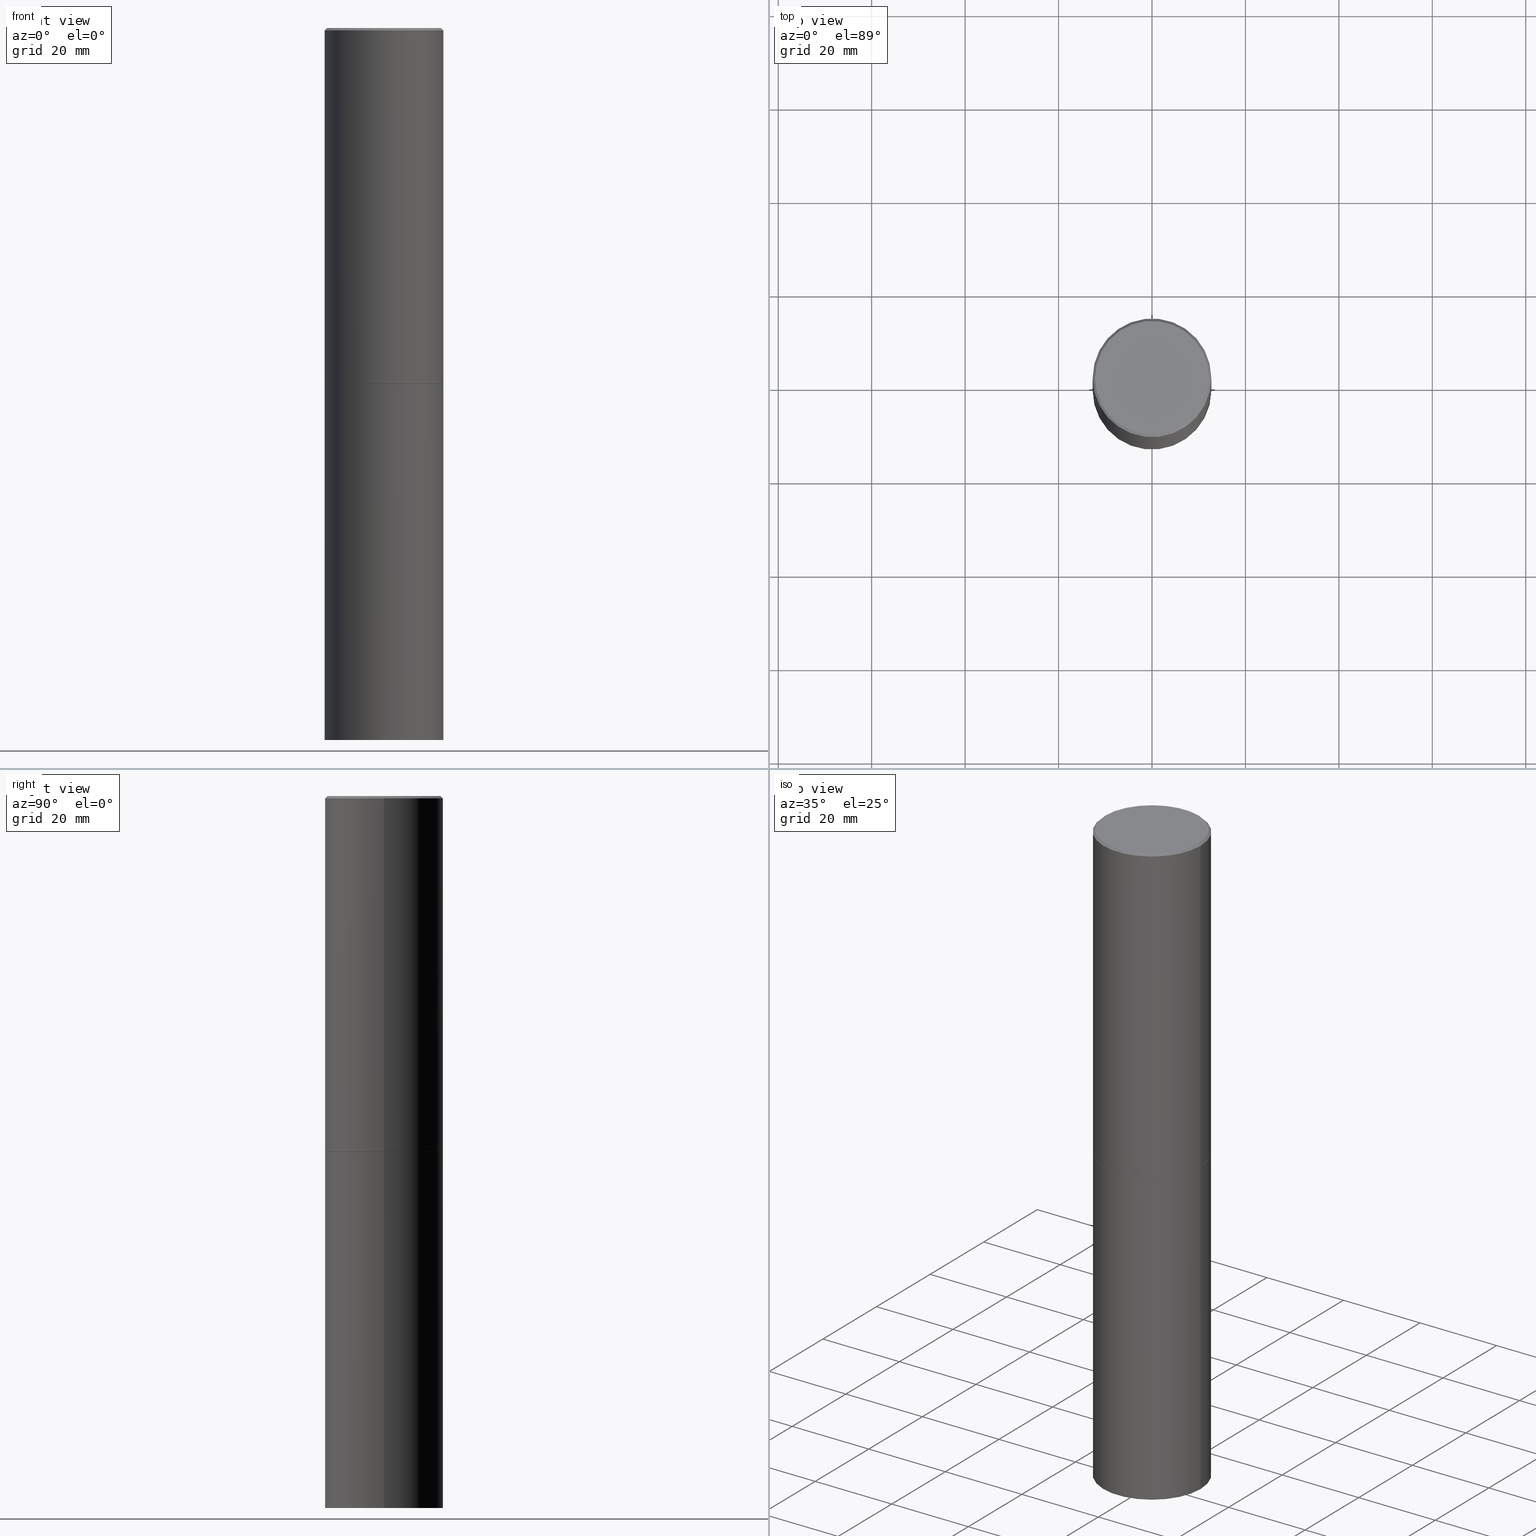
[diagram: canonical four-view strip — front | top / right | iso, engineering-drawing reading convention]
A machine part, canonical four-view strip (front | top / right | iso — engineering-drawing reading convention). The complete STEP part file that produces these views, byte-faithful:
ISO-10303-21;
HEADER;
FILE_DESCRIPTION (( 'STEP AP203' ),
    '1' );
FILE_NAME ('70489.STEP',
    '2024-02-29T03:27:12',
    ( '' ),
    ( '' ),
    'SwSTEP 2.0',
    'SolidWorks 2023',
    '' );
FILE_SCHEMA (( 'CONFIG_CONTROL_DESIGN' ));
ENDSEC;

DATA;
#1 = PERSON_AND_ORGANIZATION_ROLE ( 'creator' ) ;
#2 = ORIENTED_EDGE ( 'NONE', *, *, #215, .T. ) ;
#3 = ADVANCED_FACE ( 'NONE', ( #102 ), #162, .T. ) ;
#4 = AXIS2_PLACEMENT_3D ( 'NONE', #154, #122, #270 ) ;
#5 = ORIENTED_EDGE ( 'NONE', *, *, #264, .T. ) ;
#6 = FACE_OUTER_BOUND ( 'NONE', #254, .T. ) ;
#7 = CALENDAR_DATE ( 2024, 28, 2 ) ;
#8 = ADVANCED_FACE ( 'NONE', ( #196 ), #210, .T. ) ;
#9 = EDGE_LOOP ( 'NONE', ( #135, #41, #364, #194 ) ) ;
#10 = DATE_TIME_ROLE ( 'creation_date' ) ;
#11 = LOCAL_TIME ( 22, 27, 12.00000000000000000, #70 ) ;
#12 = EDGE_LOOP ( 'NONE', ( #243, #336, #288, #257 ) ) ;
#13 = DIRECTION ( 'NONE',  ( -0.7071067811868130271, 7.493145998871311837E-15, 0.7071067811862817853 ) ) ;
#14 = PRODUCT_RELATED_PRODUCT_CATEGORY ( 'detail', '', ( #350 ) ) ;
#15 = DIRECTION ( 'NONE',  ( -2.445468806185136877E-29, 3.491481338843145188E-15, 1.000000000000000000 ) ) ;
#16 = DIRECTION ( 'NONE',  ( 2.445468806185136597E-29, -3.491481338843145583E-15, -1.000000000000000000 ) ) ;
#17 = LOCAL_TIME ( 22, 27, 12.00000000000000000, #167 ) ;
#18 = DIRECTION ( 'NONE',  ( -2.445468806185136597E-29, 3.491481338843145583E-15, 1.000000000000000000 ) ) ;
#19 = ADVANCED_FACE ( 'NONE', ( #172 ), #286, .F. ) ;
#20 = CARTESIAN_POINT ( 'NONE',  ( 7.336406418555409790E-29, -1.047444401652943635E-14, -3.000000000000000444 ) ) ;
#21 = PERSON_AND_ORGANIZATION_ROLE ( 'design_owner' ) ;
#22 = PRODUCT_DEFINITION_FORMATION_WITH_SPECIFIED_SOURCE ( 'ANY', '', #350, .NOT_KNOWN. ) ;
#23 = EDGE_CURVE ( 'NONE', #330, #86, #279, .T. ) ;
#24 = DIRECTION ( 'NONE',  ( 1.000000000000000000, -6.982962677686269077E-15, 0.000000000000000000 ) ) ;
#25 = DIRECTION ( 'NONE',  ( -2.445468806185136597E-29, 3.491481338843145583E-15, 1.000000000000000000 ) ) ;
#26 = AXIS2_PLACEMENT_3D ( 'NONE', #164, #282, #35 ) ;
#27 = VECTOR ( 'NONE', #202, 39.37007874015748854 ) ;
#28 =( NAMED_UNIT ( * ) PLANE_ANGLE_UNIT ( ) SI_UNIT ( $, .RADIAN. ) );
#29 = PERSON_AND_ORGANIZATION_ROLE ( 'creator' ) ;
#30 = EDGE_CURVE ( 'NONE', #283, #330, #40, .T. ) ;
#31 = VERTEX_POINT ( 'NONE', #259 ) ;
#32 = DIRECTION ( 'NONE',  ( 1.000000000000000000, -6.982962677686266711E-15, 0.000000000000000000 ) ) ;
#33 = CIRCLE ( 'NONE', #120, 0.5000000000000000000 ) ;
#34 = COORDINATED_UNIVERSAL_TIME_OFFSET ( 5, 0, .BEHIND. ) ;
#35 = DIRECTION ( 'NONE',  ( 1.000000000000000000, -6.982962677686266711E-15, 4.876176775795935793E-29 ) ) ;
#36 = ADVANCED_FACE ( 'NONE', ( #118 ), #54, .T. ) ;
#37 = EDGE_LOOP ( 'NONE', ( #285, #308, #107, #143 ) ) ;
#38 = DIRECTION ( 'NONE',  ( -1.000000000000000000, 6.982962677686265922E-15, -4.876176775795935793E-29 ) ) ;
#39 = ORIENTED_EDGE ( 'NONE', *, *, #215, .F. ) ;
#40 = LINE ( 'NONE', #252, #43 ) ;
#41 = ORIENTED_EDGE ( 'NONE', *, *, #42, .T. ) ;
#42 = EDGE_CURVE ( 'NONE', #330, #344, #132, .T. ) ;
#43 = VECTOR ( 'NONE', #13, 39.37007874015748854 ) ;
#44 = DIRECTION ( 'NONE',  ( 1.000000000000000000, -6.982962677686269077E-15, 0.000000000000000000 ) ) ;
#45 = DIRECTION ( 'NONE',  ( -2.445468806185136597E-29, 3.491481338843145583E-15, 1.000000000000000000 ) ) ;
#46 = CALENDAR_DATE ( 2024, 28, 2 ) ;
#47 = CARTESIAN_POINT ( 'NONE',  ( 0.4989999999999999991, -1.395894239269488369E-14, -2.999999999999999556 ) ) ;
#48 = CARTESIAN_POINT ( 'NONE',  ( 0.4999999999999998335, -3.491481338843132566E-15, 2.438088387897967336E-29 ) ) ;
#49 = CIRCLE ( 'NONE', #211, 0.4999999999999997224 ) ;
#50 = CARTESIAN_POINT ( 'NONE',  ( -0.5000000000000000000, -1.215895234599365439E-14, -3.000000000000000444 ) ) ;
#51 = LINE ( 'NONE', #48, #65 ) ;
#52 = ADVANCED_FACE ( 'NONE', ( #71 ), #87, .T. ) ;
#53 = APPROVAL_ROLE ( '' ) ;
#54 = CONICAL_SURFACE ( 'NONE', #203, 0.4989999999999999991, 0.7853981633978239785 ) ;
#55 = AXIS2_PLACEMENT_3D ( 'NONE', #335, #130, #58 ) ;
#56 = DIRECTION ( 'NONE',  ( 2.438088387897960049E-29, -3.491481338843145188E-15, -1.000000000000000000 ) ) ;
#57 = PERSON_AND_ORGANIZATION ( #302, #268 ) ;
#58 = DIRECTION ( 'NONE',  ( 1.000000000000000000, -6.982962677686262766E-15, 0.000000000000000000 ) ) ;
#59 = ADVANCED_FACE ( 'NONE', ( #284 ), #310, .T. ) ;
#60 = DIRECTION ( 'NONE',  ( 0.000000000000000000, 0.000000000000000000, 1.000000000000000000 ) ) ;
#61 = ORIENTED_EDGE ( 'NONE', *, *, #337, .F. ) ;
#62 = APPROVAL_DATE_TIME ( #136, #206 ) ;
#63 = ADVANCED_FACE ( 'NONE', ( #6 ), #114, .T. ) ;
#64 = COORDINATED_UNIVERSAL_TIME_OFFSET ( 5, 0, .BEHIND. ) ;
#65 = VECTOR ( 'NONE', #209, 39.37007874015748143 ) ;
#66 = CARTESIAN_POINT ( 'NONE',  ( 3.491481338843206325E-15, 0.4999999999999895639, -3.000000000000001776 ) ) ;
#67 = VERTEX_POINT ( 'NONE', #96 ) ;
#68 = EDGE_LOOP ( 'NONE', ( #366, #173 ) ) ;
#69 = PRODUCT_DEFINITION ( 'UNKNOWN', '', #22, #311 ) ;
#70 = COORDINATED_UNIVERSAL_TIME_OFFSET ( 5, 0, .BEHIND. ) ;
#71 = FACE_OUTER_BOUND ( 'NONE', #117, .T. ) ;
#72 = VERTEX_POINT ( 'NONE', #77 ) ;
#73 = AXIS2_PLACEMENT_3D ( 'NONE', #359, #25, #101 ) ;
#74 = CARTESIAN_POINT ( 'NONE',  ( -0.4989999999999999991, -6.923537310738314819E-15, -2.999999999999999556 ) ) ;
#75 = CARTESIAN_POINT ( 'NONE',  ( 7.336406418555409790E-29, -1.047444401652943635E-14, -3.000000000000000444 ) ) ;
#76 = AXIS2_PLACEMENT_3D ( 'NONE', #217, #60, #296 ) ;
#77 = CARTESIAN_POINT ( 'NONE',  ( 0.4999999999999997224, -3.500078625662627502E-15, -0.02000000000000011491 ) ) ;
#78 = CARTESIAN_POINT ( 'NONE',  ( 3.351822085289405970E-15, 0.4799999999999997047, -1.669508273909558261E-15 ) ) ;
#79 = ORIENTED_EDGE ( 'NONE', *, *, #236, .T. ) ;
#80 = DATE_AND_TIME ( #116, #332 ) ;
#81 = CIRCLE ( 'NONE', #240, 0.5000000000000000000 ) ;
#82 = MECHANICAL_CONTEXT ( 'NONE', #241, 'mechanical' ) ;
#83 = PERSON_AND_ORGANIZATION_ROLE ( 'classification_officer' ) ;
#84 = FACE_OUTER_BOUND ( 'NONE', #68, .T. ) ;
#85 = PLANE ( 'NONE',  #126 ) ;
#86 = VERTEX_POINT ( 'NONE', #272 ) ;
#87 = CONICAL_SURFACE ( 'NONE', #182, 0.4999999999999997224, 0.7853981633974449483 ) ;
#88 = DIRECTION ( 'NONE',  ( 2.445468806185136597E-29, -3.491481338843145583E-15, -1.000000000000000000 ) ) ;
#89 = ORIENTED_EDGE ( 'NONE', *, *, #23, .T. ) ;
#90 = APPROVAL_STATUS ( 'not_yet_approved' ) ;
#91 = FACE_OUTER_BOUND ( 'NONE', #227, .T. ) ;
#92 = LOCAL_TIME ( 22, 27, 12.00000000000000000, #34 ) ;
#93 = VECTOR ( 'NONE', #106, 39.37007874015748143 ) ;
#94 = LINE ( 'NONE', #265, #146 ) ;
#95 = DIRECTION ( 'NONE',  ( -1.000000000000000000, 6.982962677686266711E-15, 0.000000000000000000 ) ) ;
#96 = CARTESIAN_POINT ( 'NONE',  ( -0.5000000000000000000, -1.215895234599365439E-14, -6.000000000000000888 ) ) ;
#97 = CARTESIAN_POINT ( 'NONE',  ( -3.131554243005659264E-46, 4.471029511141341874E-32, 1.280553747030123384E-17 ) ) ;
#98 = AXIS2_PLACEMENT_3D ( 'NONE', #275, #357, #24 ) ;
#99 = EDGE_CURVE ( 'NONE', #318, #283, #348, .T. ) ;
#100 = FACE_OUTER_BOUND ( 'NONE', #224, .T. ) ;
#101 = DIRECTION ( 'NONE',  ( 1.000000000000000000, -6.982962677686266711E-15, 0.000000000000000000 ) ) ;
#102 = FACE_OUTER_BOUND ( 'NONE', #9, .T. ) ;
#103 = CARTESIAN_POINT ( 'NONE',  ( 3.491481338843279295E-15, 0.4999999999999790168, -6.000000000000002665 ) ) ;
#104 = CIRCLE ( 'NONE', #112, 0.5000000000000000000 ) ;
#105 = ORIENTED_EDGE ( 'NONE', *, *, #304, .F. ) ;
#106 = DIRECTION ( 'NONE',  ( -0.7071067811865451302, 2.468850131082231817E-15, -0.7071067811865499042 ) ) ;
#107 = ORIENTED_EDGE ( 'NONE', *, *, #161, .F. ) ;
#108 = APPROVAL_ROLE ( '' ) ;
#109 = PERSON_AND_ORGANIZATION ( #302, #268 ) ;
#110 = ORIENTED_EDGE ( 'NONE', *, *, #358, .F. ) ;
#111 = APPROVAL ( #125, 'UNSPECIFIED' ) ;
#112 = AXIS2_PLACEMENT_3D ( 'NONE', #123, #323, #184 ) ;
#113 = ORIENTED_EDGE ( 'NONE', *, *, #170, .T. ) ;
#114 = CYLINDRICAL_SURFACE ( 'NONE', #175, 0.5000000000000000000 ) ;
#115 = APPROVAL ( #155, 'UNSPECIFIED' ) ;
#116 = CALENDAR_DATE ( 2024, 28, 2 ) ;
#117 = EDGE_LOOP ( 'NONE', ( #160, #201, #262, #79 ) ) ;
#118 = FACE_OUTER_BOUND ( 'NONE', #37, .T. ) ;
#119 = LINE ( 'NONE', #47, #27 ) ;
#120 = AXIS2_PLACEMENT_3D ( 'NONE', #238, #185, #294 ) ;
#121 =( GEOMETRIC_REPRESENTATION_CONTEXT ( 3 ) GLOBAL_UNCERTAINTY_ASSIGNED_CONTEXT ( ( #186 ) ) GLOBAL_UNIT_ASSIGNED_CONTEXT ( ( #189, #28, #191 ) ) REPRESENTATION_CONTEXT ( 'NONE', 'WORKASPACE' ) );
#122 = DIRECTION ( 'NONE',  ( -2.438088387897960049E-29, 3.491481338843145188E-15, 1.000000000000000000 ) ) ;
#123 = CARTESIAN_POINT ( 'NONE',  ( 7.333960949749226429E-29, -1.047095253519059492E-14, -2.999000000000000554 ) ) ;
#124 = CC_DESIGN_PERSON_AND_ORGANIZATION_ASSIGNMENT ( #187, #21, ( #350 ) ) ;
#125 = APPROVAL_STATUS ( 'not_yet_approved' ) ;
#126 = AXIS2_PLACEMENT_3D ( 'NONE', #103, #362, #329 ) ;
#127 = SECURITY_CLASSIFICATION_LEVEL ( 'unclassified' ) ;
#128 = CARTESIAN_POINT ( 'NONE',  ( 0.5000000000000000000, -1.396243387403372828E-14, -2.999000000000000554 ) ) ;
#129 = VERTEX_POINT ( 'NONE', #50 ) ;
#130 = DIRECTION ( 'NONE',  ( -2.445468806185136597E-29, 3.491481338843145583E-15, 1.000000000000000000 ) ) ;
#131 = EDGE_CURVE ( 'NONE', #67, #280, #33, .T. ) ;
#132 = CIRCLE ( 'NONE', #239, 0.5000000000000000000 ) ;
#133 = ORIENTED_EDGE ( 'NONE', *, *, #99, .F. ) ;
#134 = DIRECTION ( 'NONE',  ( -2.445468806185136877E-29, 3.491481338843145188E-15, 1.000000000000000000 ) ) ;
#135 = ORIENTED_EDGE ( 'NONE', *, *, #23, .F. ) ;
#136 = DATE_AND_TIME ( #277, #11 ) ;
#137 = CC_DESIGN_PERSON_AND_ORGANIZATION_ASSIGNMENT ( #109, #299, ( #22 ) ) ;
#138 = VERTEX_POINT ( 'NONE', #232 ) ;
#139 = CIRCLE ( 'NONE', #326, 0.5000000000000000000 ) ;
#140 = APPLICATION_CONTEXT ( 'configuration controlled 3d designs of mechanical parts and assemblies' ) ;
#141 = DIRECTION ( 'NONE',  ( -2.445468806185136597E-29, 3.491481338843145583E-15, 1.000000000000000000 ) ) ;
#142 = EDGE_LOOP ( 'NONE', ( #174, #2 ) ) ;
#143 = ORIENTED_EDGE ( 'NONE', *, *, #170, .F. ) ;
#144 = DIRECTION ( 'NONE',  ( -2.445468806185136597E-29, 3.491481338843145583E-15, 1.000000000000000000 ) ) ;
#145 = ORIENTED_EDGE ( 'NONE', *, *, #295, .T. ) ;
#146 = VECTOR ( 'NONE', #15, 39.37007874015748143 ) ;
#147 = DIRECTION ( 'NONE',  ( 2.438088387897960049E-29, -3.491481338843145188E-15, -1.000000000000000000 ) ) ;
#148 = DIRECTION ( 'NONE',  ( 1.000000000000000000, -6.982962677686266711E-15, 0.000000000000000000 ) ) ;
#149 = DIRECTION ( 'NONE',  ( 1.000000000000000000, -6.982962677686267499E-15, 4.876036955247132206E-29 ) ) ;
#150 = DIRECTION ( 'NONE',  ( 1.000000000000000000, -6.982962677686266711E-15, 0.000000000000000000 ) ) ;
#151 = CC_DESIGN_DATE_AND_TIME_ASSIGNMENT ( #171, #10, ( #69 ) ) ;
#152 = DIRECTION ( 'NONE',  ( 1.000000000000000000, -6.982962677686267499E-15, 4.876176775795936353E-29 ) ) ;
#153 = EDGE_CURVE ( 'NONE', #197, #31, #229, .T. ) ;
#154 = CARTESIAN_POINT ( 'NONE',  ( 7.336406418555408669E-29, -1.047444401652943478E-14, -2.999999999999999556 ) ) ;
#155 = APPROVAL_STATUS ( 'not_yet_approved' ) ;
#156 = COORDINATED_UNIVERSAL_TIME_OFFSET ( 5, 0, .BEHIND. ) ;
#157 = ORIENTED_EDGE ( 'NONE', *, *, #223, .T. ) ;
#158 = MANIFOLD_SOLID_BREP ( 'Body-Move/Copy2[1]', #307 ) ;
#159 = CARTESIAN_POINT ( 'NONE',  ( -0.5000000000000000000, -1.717677402183226998E-15, -2.999000000000000554 ) ) ;
#160 = ORIENTED_EDGE ( 'NONE', *, *, #295, .F. ) ;
#161 = EDGE_CURVE ( 'NONE', #344, #330, #104, .T. ) ;
#162 = CYLINDRICAL_SURFACE ( 'NONE', #244, 0.4999999999999998335 ) ;
#163 = ORIENTED_EDGE ( 'NONE', *, *, #161, .T. ) ;
#164 = CARTESIAN_POINT ( 'NONE',  ( 0.000000000000000000, 0.000000000000000000, 0.000000000000000000 ) ) ;
#165 = ORIENTED_EDGE ( 'NONE', *, *, #131, .T. ) ;
#166 = APPROVAL_PERSON_ORGANIZATION ( #258, #115, #108 ) ;
#167 = COORDINATED_UNIVERSAL_TIME_OFFSET ( 5, 0, .BEHIND. ) ;
#168 = DIRECTION ( 'NONE',  ( 1.000000000000000000, -6.982962677686269077E-15, 0.000000000000000000 ) ) ;
#169 = ORIENTED_EDGE ( 'NONE', *, *, #42, .F. ) ;
#170 = EDGE_CURVE ( 'NONE', #318, #344, #119, .T. ) ;
#171 = DATE_AND_TIME ( #7, #92 ) ;
#172 = FACE_OUTER_BOUND ( 'NONE', #142, .T. ) ;
#173 = ORIENTED_EDGE ( 'NONE', *, *, #131, .F. ) ;
#174 = ORIENTED_EDGE ( 'NONE', *, *, #267, .T. ) ;
#175 = AXIS2_PLACEMENT_3D ( 'NONE', #226, #343, #327 ) ;
#176 = LOCAL_TIME ( 22, 27, 12.00000000000000000, #156 ) ;
#177 = ADVANCED_FACE ( 'NONE', ( #352 ), #231, .T. ) ;
#178 = DIRECTION ( 'NONE',  ( -2.445468806185136597E-29, 3.491481338843145583E-15, 1.000000000000000000 ) ) ;
#179 = FACE_OUTER_BOUND ( 'NONE', #334, .T. ) ;
#180 = DIRECTION ( 'NONE',  ( 0.7071067811865451302, -7.319954787623248157E-15, -0.7071067811865499042 ) ) ;
#181 = CC_DESIGN_PERSON_AND_ORGANIZATION_ASSIGNMENT ( #248, #1, ( #22 ) ) ;
#182 = AXIS2_PLACEMENT_3D ( 'NONE', #340, #88, #193 ) ;
#183 = VECTOR ( 'NONE', #180, 39.37007874015748143 ) ;
#184 = DIRECTION ( 'NONE',  ( 1.000000000000000000, -6.982962677686266711E-15, 0.000000000000000000 ) ) ;
#185 = DIRECTION ( 'NONE',  ( -2.445468806185136597E-29, 3.491481338843145583E-15, 1.000000000000000000 ) ) ;
#186 = UNCERTAINTY_MEASURE_WITH_UNIT (LENGTH_MEASURE( 1.000000000000000082E-05 ), #189, 'distance_accuracy_value', 'NONE');
#187 = PERSON_AND_ORGANIZATION ( #302, #268 ) ;
#188 = EDGE_LOOP ( 'NONE', ( #163, #89, #110, #360 ) ) ;
#189 =( CONVERSION_BASED_UNIT ( 'INCH', #363 ) LENGTH_UNIT ( ) NAMED_UNIT ( #261 ) );
#190 = VECTOR ( 'NONE', #134, 39.37007874015748143 ) ;
#191 =( NAMED_UNIT ( * ) SI_UNIT ( $, .STERADIAN. ) SOLID_ANGLE_UNIT ( ) );
#192 = SHAPE_DEFINITION_REPRESENTATION ( #249, #341 ) ;
#193 = DIRECTION ( 'NONE',  ( -1.000000000000000000, 6.982962677686266711E-15, 0.000000000000000000 ) ) ;
#194 = ORIENTED_EDGE ( 'NONE', *, *, #236, .F. ) ;
#195 = EDGE_CURVE ( 'NONE', #344, #72, #51, .T. ) ;
#196 = FACE_OUTER_BOUND ( 'NONE', #245, .T. ) ;
#197 = VERTEX_POINT ( 'NONE', #346 ) ;
#198 = AXIS2_PLACEMENT_3D ( 'NONE', #97, #290, #235 ) ;
#199 = APPROVAL_ROLE ( '' ) ;
#200 = CARTESIAN_POINT ( 'NONE',  ( 7.336406418555408669E-29, -1.047444401652943478E-14, -2.999999999999999556 ) ) ;
#201 = ORIENTED_EDGE ( 'NONE', *, *, #153, .F. ) ;
#202 = DIRECTION ( 'NONE',  ( 0.7071067811868130271, -2.468850131085038979E-15, 0.7071067811862817853 ) ) ;
#203 = AXIS2_PLACEMENT_3D ( 'NONE', #200, #221, #168 ) ;
#204 = CIRCLE ( 'NONE', #198, 0.4799999999999997047 ) ;
#205 = CARTESIAN_POINT ( 'NONE',  ( -3.131554243005659264E-46, 4.471029511141341874E-32, 1.280553747030123384E-17 ) ) ;
#206 = APPROVAL ( #90, 'UNSPECIFIED' ) ;
#207 = LINE ( 'NONE', #324, #183 ) ;
#208 = DATE_AND_TIME ( #46, #17 ) ;
#209 = DIRECTION ( 'NONE',  ( -2.445468806185136877E-29, 3.491481338843145188E-15, 1.000000000000000000 ) ) ;
#210 = CONICAL_SURFACE ( 'NONE', #260, 0.4989999999999999991, 0.7853981633978239785 ) ;
#211 = AXIS2_PLACEMENT_3D ( 'NONE', #212, #45, #148 ) ;
#212 = CARTESIAN_POINT ( 'NONE',  ( 4.890937612370302060E-31, -6.982962677686331052E-17, -0.02000000000000011491 ) ) ;
#213 = ADVANCED_FACE ( 'NONE', ( #91 ), #325, .F. ) ;
#214 = CARTESIAN_POINT ( 'NONE',  ( 0.4989999999999999991, -1.395894239269488369E-14, -2.999999999999999556 ) ) ;
#215 = EDGE_CURVE ( 'NONE', #129, #138, #139, .T. ) ;
#216 = PLANE ( 'NONE',  #349 ) ;
#217 = CARTESIAN_POINT ( 'NONE',  ( 0.000000000000000000, 0.000000000000000000, 0.000000000000000000 ) ) ;
#218 = CC_DESIGN_APPROVAL ( #115, ( #281 ) ) ;
#219 = PERSON_AND_ORGANIZATION ( #302, #268 ) ;
#220 = CARTESIAN_POINT ( 'NONE',  ( -0.4999999999999997224, 3.421651712066268085E-15, -0.02000000000000011491 ) ) ;
#221 = DIRECTION ( 'NONE',  ( -2.445468806185136597E-29, 3.491481338843145583E-15, 1.000000000000000000 ) ) ;
#222 = AXIS2_PLACEMENT_3D ( 'NONE', #351, #16, #95 ) ;
#223 = EDGE_CURVE ( 'NONE', #31, #197, #204, .T. ) ;
#224 = EDGE_LOOP ( 'NONE', ( #298, #157 ) ) ;
#225 = CC_DESIGN_PERSON_AND_ORGANIZATION_ASSIGNMENT ( #219, #83, ( #281 ) ) ;
#226 = CARTESIAN_POINT ( 'NONE',  ( 0.000000000000000000, 0.000000000000000000, 0.000000000000000000 ) ) ;
#227 = EDGE_LOOP ( 'NONE', ( #133, #61 ) ) ;
#228 = CARTESIAN_POINT ( 'NONE',  ( 0.000000000000000000, 0.000000000000000000, 0.000000000000000000 ) ) ;
#229 = CIRCLE ( 'NONE', #233, 0.4799999999999997047 ) ;
#230 = CIRCLE ( 'NONE', #73, 0.4999999999999997224 ) ;
#231 = CYLINDRICAL_SURFACE ( 'NONE', #273, 0.4999999999999998335 ) ;
#232 = CARTESIAN_POINT ( 'NONE',  ( 0.5000000000000000000, -1.396592535537257129E-14, -3.000000000000000444 ) ) ;
#233 = AXIS2_PLACEMENT_3D ( 'NONE', #205, #178, #149 ) ;
#234 = CC_DESIGN_APPROVAL ( #111, ( #69 ) ) ;
#235 = DIRECTION ( 'NONE',  ( 1.000000000000000000, -6.982962677686267499E-15, 4.876036955247132206E-29 ) ) ;
#236 = EDGE_CURVE ( 'NONE', #86, #72, #49, .T. ) ;
#237 = CARTESIAN_POINT ( 'NONE',  ( 7.336406418555408669E-29, -1.047444401652943478E-14, -2.999999999999999556 ) ) ;
#238 = CARTESIAN_POINT ( 'NONE',  ( 1.467281283711081958E-28, -2.094888803305887271E-14, -6.000000000000000888 ) ) ;
#239 = AXIS2_PLACEMENT_3D ( 'NONE', #309, #317, #32 ) ;
#240 = AXIS2_PLACEMENT_3D ( 'NONE', #75, #266, #150 ) ;
#241 = APPLICATION_CONTEXT ( 'configuration controlled 3d designs of mechanical parts and assemblies' ) ;
#242 = CALENDAR_DATE ( 2024, 28, 2 ) ;
#243 = ORIENTED_EDGE ( 'NONE', *, *, #354, .T. ) ;
#244 = AXIS2_PLACEMENT_3D ( 'NONE', #228, #141, #316 ) ;
#245 = EDGE_LOOP ( 'NONE', ( #250, #247, #113, #169 ) ) ;
#246 =( LENGTH_UNIT ( ) NAMED_UNIT ( * ) SI_UNIT ( $, .METRE. ) );
#247 = ORIENTED_EDGE ( 'NONE', *, *, #337, .T. ) ;
#248 = PERSON_AND_ORGANIZATION ( #302, #268 ) ;
#249 = PRODUCT_DEFINITION_SHAPE ( 'NONE', 'NONE',  #69 ) ;
#250 = ORIENTED_EDGE ( 'NONE', *, *, #30, .F. ) ;
#251 = AXIS2_PLACEMENT_3D ( 'NONE', #66, #147, #38 ) ;
#252 = CARTESIAN_POINT ( 'NONE',  ( -0.4989999999999999991, -6.928835765086534855E-15, -2.999999999999999556 ) ) ;
#253 = CONICAL_SURFACE ( 'NONE', #222, 0.4999999999999997224, 0.7853981633974449483 ) ;
#254 = EDGE_LOOP ( 'NONE', ( #105, #165, #5, #39 ) ) ;
#255 = DIRECTION ( 'NONE',  ( -2.445468806185136877E-29, 3.491481338843145188E-15, 1.000000000000000000 ) ) ;
#256 = PERSON_AND_ORGANIZATION ( #302, #268 ) ;
#257 = ORIENTED_EDGE ( 'NONE', *, *, #264, .F. ) ;
#258 = PERSON_AND_ORGANIZATION ( #302, #268 ) ;
#259 = CARTESIAN_POINT ( 'NONE',  ( 0.4799999999999997047, -3.396558832296480127E-15, 1.280553747032483033E-17 ) ) ;
#260 = AXIS2_PLACEMENT_3D ( 'NONE', #313, #144, #44 ) ;
#261 = DIMENSIONAL_EXPONENTS ( 1.000000000000000000, 0.000000000000000000, 0.000000000000000000, 0.000000000000000000, 0.000000000000000000, 0.000000000000000000, 0.000000000000000000 ) ;
#262 = ORIENTED_EDGE ( 'NONE', *, *, #361, .T. ) ;
#263 = CARTESIAN_POINT ( 'NONE',  ( -0.4999999999999998335, 3.552713678800499746E-15, -2.459467545127452330E-29 ) ) ;
#264 = EDGE_CURVE ( 'NONE', #280, #138, #94, .T. ) ;
#265 = CARTESIAN_POINT ( 'NONE',  ( 0.5000000000000000000, -3.491481338843133355E-15, 2.438088387897967896E-29 ) ) ;
#266 = DIRECTION ( 'NONE',  ( -2.445468806185136597E-29, 3.491481338843145583E-15, 1.000000000000000000 ) ) ;
#267 = EDGE_CURVE ( 'NONE', #138, #129, #81, .T. ) ;
#268 = ORGANIZATION ( 'UNSPECIFIED', 'UNSPECIFIED', '' ) ;
#269 = LINE ( 'NONE', #306, #190 ) ;
#270 = DIRECTION ( 'NONE',  ( 1.000000000000000000, -6.982962677686265922E-15, 4.876176775795935793E-29 ) ) ;
#271 = CC_DESIGN_PERSON_AND_ORGANIZATION_ASSIGNMENT ( #256, #29, ( #69 ) ) ;
#272 = CARTESIAN_POINT ( 'NONE',  ( -0.4999999999999997224, 3.421651712066268085E-15, -0.02000000000000011491 ) ) ;
#273 = AXIS2_PLACEMENT_3D ( 'NONE', #292, #293, #152 ) ;
#274 = LINE ( 'NONE', #220, #93 ) ;
#275 = CARTESIAN_POINT ( 'NONE',  ( 7.336406418555408669E-29, -1.047444401652943478E-14, -2.999999999999999556 ) ) ;
#276 = APPROVAL_PERSON_ORGANIZATION ( #345, #206, #199 ) ;
#277 = CALENDAR_DATE ( 2024, 28, 2 ) ;
#278 = ORIENTED_EDGE ( 'NONE', *, *, #223, .F. ) ;
#279 = LINE ( 'NONE', #263, #300 ) ;
#280 = VERTEX_POINT ( 'NONE', #347 ) ;
#281 = SECURITY_CLASSIFICATION ( '', '', #127 ) ;
#282 = DIRECTION ( 'NONE',  ( -2.445468806185136597E-29, 3.491481338843145583E-15, 1.000000000000000000 ) ) ;
#283 = VERTEX_POINT ( 'NONE', #74 ) ;
#284 = FACE_OUTER_BOUND ( 'NONE', #12, .T. ) ;
#285 = ORIENTED_EDGE ( 'NONE', *, *, #99, .T. ) ;
#286 = PLANE ( 'NONE',  #251 ) ;
#287 = MANIFOLD_SOLID_BREP ( 'Body-Move/Copy2[2]', #355 ) ;
#288 = ORIENTED_EDGE ( 'NONE', *, *, #267, .F. ) ;
#289 = ADVANCED_FACE ( 'NONE', ( #179 ), #253, .T. ) ;
#290 = DIRECTION ( 'NONE',  ( -2.445468806185136597E-29, 3.491481338843145583E-15, 1.000000000000000000 ) ) ;
#291 = DIRECTION ( 'NONE',  ( 1.000000000000000000, -6.982962677686269077E-15, 0.000000000000000000 ) ) ;
#292 = CARTESIAN_POINT ( 'NONE',  ( 0.000000000000000000, 0.000000000000000000, 0.000000000000000000 ) ) ;
#293 = DIRECTION ( 'NONE',  ( -2.445468806185136597E-29, 3.491481338843145583E-15, 1.000000000000000000 ) ) ;
#294 = DIRECTION ( 'NONE',  ( 1.000000000000000000, -6.982962677686262766E-15, 0.000000000000000000 ) ) ;
#295 = EDGE_CURVE ( 'NONE', #31, #72, #207, .T. ) ;
#296 = DIRECTION ( 'NONE',  ( 1.000000000000000000, 0.000000000000000000, 0.000000000000000000 ) ) ;
#297 = APPROVAL_DATE_TIME ( #208, #115 ) ;
#298 = ORIENTED_EDGE ( 'NONE', *, *, #153, .T. ) ;
#299 = PERSON_AND_ORGANIZATION_ROLE ( 'design_supplier' ) ;
#300 = VECTOR ( 'NONE', #255, 39.37007874015748143 ) ;
#301 = CC_DESIGN_APPROVAL ( #206, ( #22 ) ) ;
#302 = PERSON ( 'UNSPECIFIED', 'UNSPECIFIED', 'UNSPECIFIED', ('UNSPECIFIED'), ('UNSPECIFIED'), ('UNSPECIFIED') ) ;
#303 = APPLICATION_PROTOCOL_DEFINITION ( 'international standard', 'config_control_design', 1994, #140 ) ;
#304 = EDGE_CURVE ( 'NONE', #67, #129, #269, .T. ) ;
#305 = DATE_TIME_ROLE ( 'classification_date' ) ;
#306 = CARTESIAN_POINT ( 'NONE',  ( -0.5000000000000000000, 3.552713678800500929E-15, -2.459467545127452891E-29 ) ) ;
#307 = CLOSED_SHELL ( 'NONE', ( #59, #328, #19, #63 ) ) ;
#308 = ORIENTED_EDGE ( 'NONE', *, *, #30, .T. ) ;
#309 = CARTESIAN_POINT ( 'NONE',  ( 7.333960949749226429E-29, -1.047095253519059492E-14, -2.999000000000000554 ) ) ;
#310 = CYLINDRICAL_SURFACE ( 'NONE', #26, 0.5000000000000000000 ) ;
#311 = DESIGN_CONTEXT ( 'detailed design', #140, 'design' ) ;
#312 = CC_DESIGN_SECURITY_CLASSIFICATION ( #281, ( #22 ) ) ;
#313 = CARTESIAN_POINT ( 'NONE',  ( 7.336406418555408669E-29, -1.047444401652943478E-14, -2.999999999999999556 ) ) ;
#314 = ORIENTED_EDGE ( 'NONE', *, *, #358, .T. ) ;
#315 = DATE_AND_TIME ( #242, #176 ) ;
#316 = DIRECTION ( 'NONE',  ( 1.000000000000000000, -6.982962677686267499E-15, 4.876176775795936353E-29 ) ) ;
#317 = DIRECTION ( 'NONE',  ( -2.445468806185136597E-29, 3.491481338843145583E-15, 1.000000000000000000 ) ) ;
#318 = VERTEX_POINT ( 'NONE', #214 ) ;
#319 = DIRECTION ( 'NONE',  ( 1.000000000000000000, -6.982962677686266711E-15, 0.000000000000000000 ) ) ;
#320 = ORIENTED_EDGE ( 'NONE', *, *, #361, .F. ) ;
#321 = CIRCLE ( 'NONE', #98, 0.4989999999999999991 ) ;
#322 = CC_DESIGN_DATE_AND_TIME_ASSIGNMENT ( #80, #305, ( #281 ) ) ;
#323 = DIRECTION ( 'NONE',  ( -2.445468806185136597E-29, 3.491481338843145583E-15, 1.000000000000000000 ) ) ;
#324 = CARTESIAN_POINT ( 'NONE',  ( 0.4999999999999997224, -3.500078625662627502E-15, -0.02000000000000011491 ) ) ;
#325 = PLANE ( 'NONE',  #4 ) ;
#326 = AXIS2_PLACEMENT_3D ( 'NONE', #20, #353, #319 ) ;
#327 = DIRECTION ( 'NONE',  ( 1.000000000000000000, -6.982962677686266711E-15, 4.876176775795935793E-29 ) ) ;
#328 = ADVANCED_FACE ( 'NONE', ( #84 ), #85, .T. ) ;
#329 = DIRECTION ( 'NONE',  ( -1.000000000000000000, 6.982962677686265922E-15, -4.876176775795935793E-29 ) ) ;
#330 = VERTEX_POINT ( 'NONE', #159 ) ;
#331 = DIRECTION ( 'NONE',  ( -1.000000000000000000, 6.982962677686265922E-15, -4.876176775795935793E-29 ) ) ;
#332 = LOCAL_TIME ( 22, 27, 12.00000000000000000, #64 ) ;
#333 = APPLICATION_PROTOCOL_DEFINITION ( 'international standard', 'config_control_design', 1994, #241 ) ;
#334 = EDGE_LOOP ( 'NONE', ( #278, #145, #314, #320 ) ) ;
#335 = CARTESIAN_POINT ( 'NONE',  ( 1.467281283711081958E-28, -2.094888803305887271E-14, -6.000000000000000888 ) ) ;
#336 = ORIENTED_EDGE ( 'NONE', *, *, #304, .T. ) ;
#337 = EDGE_CURVE ( 'NONE', #283, #318, #321, .T. ) ;
#338 = AXIS2_PLACEMENT_3D ( 'NONE', #237, #18, #291 ) ;
#339 = APPROVAL_PERSON_ORGANIZATION ( #57, #111, #53 ) ;
#340 = CARTESIAN_POINT ( 'NONE',  ( 4.890937612370302060E-31, -6.982962677686331052E-17, -0.02000000000000011491 ) ) ;
#341 = ADVANCED_BREP_SHAPE_REPRESENTATION ( '70489', ( #158, #287, #76 ), #121 ) ;
#342 = APPROVAL_DATE_TIME ( #315, #111 ) ;
#343 = DIRECTION ( 'NONE',  ( -2.445468806185136597E-29, 3.491481338843145583E-15, 1.000000000000000000 ) ) ;
#344 = VERTEX_POINT ( 'NONE', #128 ) ;
#345 = PERSON_AND_ORGANIZATION ( #302, #268 ) ;
#346 = CARTESIAN_POINT ( 'NONE',  ( -0.4799999999999997047, 3.386736898677837619E-15, 1.280553747027767124E-17 ) ) ;
#347 = CARTESIAN_POINT ( 'NONE',  ( 0.5000000000000000000, -2.444036937190200606E-14, -6.000000000000000888 ) ) ;
#348 = CIRCLE ( 'NONE', #338, 0.4989999999999999991 ) ;
#349 = AXIS2_PLACEMENT_3D ( 'NONE', #78, #56, #331 ) ;
#350 = PRODUCT ( '70489', '70489', '', ( #82 ) ) ;
#351 = CARTESIAN_POINT ( 'NONE',  ( 4.890937612370302060E-31, -6.982962677686331052E-17, -0.02000000000000011491 ) ) ;
#352 = FACE_OUTER_BOUND ( 'NONE', #188, .T. ) ;
#353 = DIRECTION ( 'NONE',  ( -2.445468806185136597E-29, 3.491481338843145583E-15, 1.000000000000000000 ) ) ;
#354 = EDGE_CURVE ( 'NONE', #280, #67, #356, .T. ) ;
#355 = CLOSED_SHELL ( 'NONE', ( #36, #177, #289, #52, #3, #8, #213, #365 ) ) ;
#356 = CIRCLE ( 'NONE', #55, 0.5000000000000000000 ) ;
#357 = DIRECTION ( 'NONE',  ( -2.445468806185136597E-29, 3.491481338843145583E-15, 1.000000000000000000 ) ) ;
#358 = EDGE_CURVE ( 'NONE', #72, #86, #230, .T. ) ;
#359 = CARTESIAN_POINT ( 'NONE',  ( 4.890937612370302060E-31, -6.982962677686331052E-17, -0.02000000000000011491 ) ) ;
#360 = ORIENTED_EDGE ( 'NONE', *, *, #195, .F. ) ;
#361 = EDGE_CURVE ( 'NONE', #197, #86, #274, .T. ) ;
#362 = DIRECTION ( 'NONE',  ( 2.438088387897960049E-29, -3.491481338843145188E-15, -1.000000000000000000 ) ) ;
#363 = LENGTH_MEASURE_WITH_UNIT ( LENGTH_MEASURE( 0.02539999999999999897 ), #246 );
#364 = ORIENTED_EDGE ( 'NONE', *, *, #195, .T. ) ;
#365 = ADVANCED_FACE ( 'NONE', ( #100 ), #216, .F. ) ;
#366 = ORIENTED_EDGE ( 'NONE', *, *, #354, .F. ) ;
ENDSEC;
END-ISO-10303-21;
